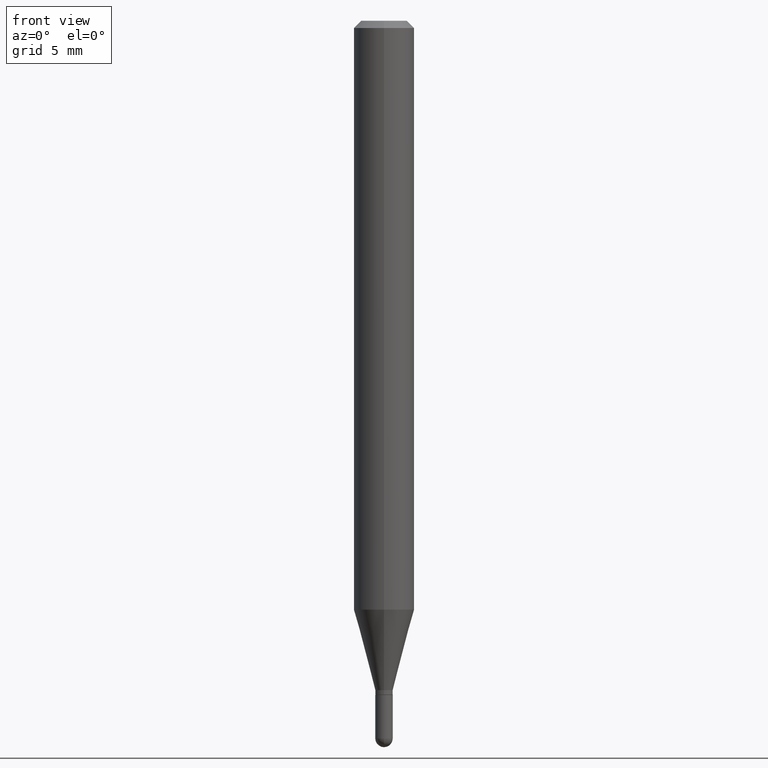
[diagram: clean part render]
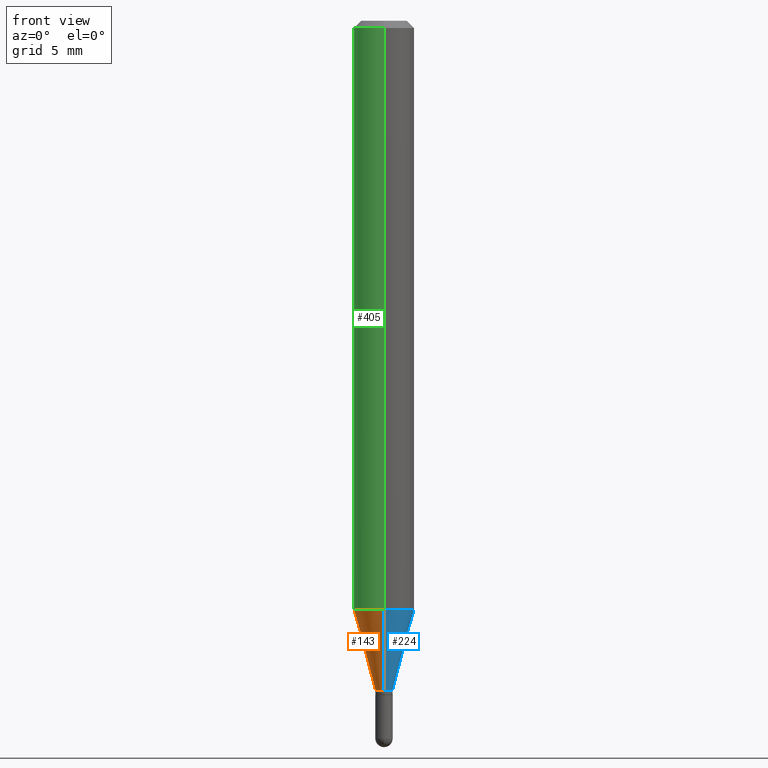
[diagram: same view with three faces highlighted in distinct colors, each labeled with its STEP entity id]
A machine part, front view with three faces highlighted in distinct colors.
Their STEP definitions:

[orange] entity #143 — the highlighted conical surface has half-angle 15 deg.
#8 = LINE ( 'NONE', #375, #111 ) ;
#39 = VERTEX_POINT ( 'NONE', #145 ) ;
#41 = ORIENTED_EDGE ( 'NONE', *, *, #107, .F. ) ;
#42 = AXIS2_PLACEMENT_3D ( 'NONE', #341, #338, #431 ) ;
#66 = DIRECTION ( 'NONE',  ( -6.982962677686265133E-15, -1.000000000000000000, 0.000000000000000000 ) ) ;
#79 = AXIS2_PLACEMENT_3D ( 'NONE', #98, #94, #254 ) ;
#89 = ORIENTED_EDGE ( 'NONE', *, *, #463, .T. ) ;
#94 = DIRECTION ( 'NONE',  ( -2.445459386778568343E-29, 3.491494827969470629E-15, 1.000000000000000000 ) ) ;
#98 = CARTESIAN_POINT ( 'NONE',  ( 3.379624872527981378E-29, -4.825245852253809549E-15, -1.382000000000000117 ) ) ;
#107 = EDGE_CURVE ( 'NONE', #490, #39, #264, .T. ) ;
#111 = VECTOR ( 'NONE', #258, 39.37007874015748143 ) ;
#136 = CARTESIAN_POINT ( 'NONE',  ( 2.859934511434718867E-16, 0.01799999999999509631, -1.382000000000000117 ) ) ;
#143 = ADVANCED_FACE ( 'NONE', ( #471 ), #161, .T. ) ;
#145 = CARTESIAN_POINT ( 'NONE',  ( 4.440892098500920998E-16, 0.06249999999999573952, -1.215923739063185627 ) ) ;
#161 = CONICAL_SURFACE ( 'NONE', #432, 0.01799999999999992231, 0.2617993877991502960 ) ;
#181 = EDGE_CURVE ( 'NONE', #39, #291, #219, .T. ) ;
#190 = CARTESIAN_POINT ( 'NONE',  ( 1.278976924368512546E-16, 0.01799999999999509631, -1.382000000000000117 ) ) ;
#219 = CIRCLE ( 'NONE', #42, 0.06250000000000000000 ) ;
#242 = ORIENTED_EDGE ( 'NONE', *, *, #430, .T. ) ;
#254 = DIRECTION ( 'NONE',  ( -6.982962677686265133E-15, -1.000000000000000000, 0.000000000000000000 ) ) ;
#258 = DIRECTION ( 'NONE',  ( -1.807323732225330139E-15, -0.2588190451025181860, 0.9659258262890689783 ) ) ;
#264 = LINE ( 'NONE', #190, #351 ) ;
#271 = CARTESIAN_POINT ( 'NONE',  ( 3.379624872527981378E-29, -4.825245852253809549E-15, -1.382000000000000117 ) ) ;
#291 = VERTEX_POINT ( 'NONE', #443 ) ;
#300 = VERTEX_POINT ( 'NONE', #437 ) ;
#307 = CIRCLE ( 'NONE', #79, 0.01799999999999992231 ) ;
#338 = DIRECTION ( 'NONE',  ( -2.445459386778568343E-29, 3.491494827969470629E-15, 1.000000000000000000 ) ) ;
#341 = CARTESIAN_POINT ( 'NONE',  ( 2.973492121298961369E-29, -4.245391446144412231E-15, -1.215923739063185405 ) ) ;
#343 = DIRECTION ( 'NONE',  ( -2.445459386778568343E-29, 3.491494827969470629E-15, 1.000000000000000000 ) ) ;
#351 = VECTOR ( 'NONE', #435, 39.37007874015748143 ) ;
#375 = CARTESIAN_POINT ( 'NONE',  ( -1.256933281983184281E-16, -0.01800000000000474831, -1.382000000000000117 ) ) ;
#376 = EDGE_LOOP ( 'NONE', ( #41, #242, #89, #486 ) ) ;
#430 = EDGE_CURVE ( 'NONE', #490, #300, #307, .T. ) ;
#431 = DIRECTION ( 'NONE',  ( -6.982962677686265922E-15, -1.000000000000000000, 4.370956789862821150E-15 ) ) ;
#432 = AXIS2_PLACEMENT_3D ( 'NONE', #271, #343, #66 ) ;
#435 = DIRECTION ( 'NONE',  ( 1.839019923739600315E-15, 0.2588190451025249583, 0.9659258262890670910 ) ) ;
#437 = CARTESIAN_POINT ( 'NONE',  ( -1.256933281983184281E-16, -0.01800000000000474831, -1.382000000000000117 ) ) ;
#443 = CARTESIAN_POINT ( 'NONE',  ( -4.364351673553620378E-16, -0.06250000000000426048, -1.215923739063185183 ) ) ;
#463 = EDGE_CURVE ( 'NONE', #300, #291, #8, .T. ) ;
#471 = FACE_OUTER_BOUND ( 'NONE', #376, .T. ) ;
#486 = ORIENTED_EDGE ( 'NONE', *, *, #181, .F. ) ;
#490 = VERTEX_POINT ( 'NONE', #136 ) ;

[blue] entity #224 — the highlighted conical surface has half-angle 15 deg.
#8 = LINE ( 'NONE', #375, #111 ) ;
#28 = DIRECTION ( 'NONE',  ( -6.982962677686265922E-15, -1.000000000000000000, 4.370956789862821150E-15 ) ) ;
#39 = VERTEX_POINT ( 'NONE', #145 ) ;
#43 = DIRECTION ( 'NONE',  ( -6.982962677686265133E-15, -1.000000000000000000, 0.000000000000000000 ) ) ;
#64 = EDGE_CURVE ( 'NONE', #291, #39, #439, .T. ) ;
#71 = CONICAL_SURFACE ( 'NONE', #157, 0.01799999999999992231, 0.2617993877991502960 ) ;
#91 = ORIENTED_EDGE ( 'NONE', *, *, #64, .F. ) ;
#107 = EDGE_CURVE ( 'NONE', #490, #39, #264, .T. ) ;
#111 = VECTOR ( 'NONE', #258, 39.37007874015748143 ) ;
#136 = CARTESIAN_POINT ( 'NONE',  ( 2.859934511434718867E-16, 0.01799999999999509631, -1.382000000000000117 ) ) ;
#145 = CARTESIAN_POINT ( 'NONE',  ( 4.440892098500920998E-16, 0.06249999999999573952, -1.215923739063185627 ) ) ;
#155 = CARTESIAN_POINT ( 'NONE',  ( 2.973492121298961369E-29, -4.245391446144412231E-15, -1.215923739063185405 ) ) ;
#157 = AXIS2_PLACEMENT_3D ( 'NONE', #482, #273, #474 ) ;
#190 = CARTESIAN_POINT ( 'NONE',  ( 1.278976924368512546E-16, 0.01799999999999509631, -1.382000000000000117 ) ) ;
#202 = ORIENTED_EDGE ( 'NONE', *, *, #463, .F. ) ;
#224 = ADVANCED_FACE ( 'NONE', ( #279 ), #71, .T. ) ;
#258 = DIRECTION ( 'NONE',  ( -1.807323732225330139E-15, -0.2588190451025181860, 0.9659258262890689783 ) ) ;
#264 = LINE ( 'NONE', #190, #351 ) ;
#273 = DIRECTION ( 'NONE',  ( -2.445459386778568343E-29, 3.491494827969470629E-15, 1.000000000000000000 ) ) ;
#279 = FACE_OUTER_BOUND ( 'NONE', #327, .T. ) ;
#283 = CARTESIAN_POINT ( 'NONE',  ( 3.379624872527981378E-29, -4.825245852253809549E-15, -1.382000000000000117 ) ) ;
#287 = EDGE_CURVE ( 'NONE', #300, #490, #410, .T. ) ;
#289 = AXIS2_PLACEMENT_3D ( 'NONE', #283, #353, #43 ) ;
#291 = VERTEX_POINT ( 'NONE', #443 ) ;
#300 = VERTEX_POINT ( 'NONE', #437 ) ;
#306 = DIRECTION ( 'NONE',  ( -2.445459386778568343E-29, 3.491494827969470629E-15, 1.000000000000000000 ) ) ;
#327 = EDGE_LOOP ( 'NONE', ( #400, #361, #91, #202 ) ) ;
#351 = VECTOR ( 'NONE', #435, 39.37007874015748143 ) ;
#353 = DIRECTION ( 'NONE',  ( -2.445459386778568343E-29, 3.491494827969470629E-15, 1.000000000000000000 ) ) ;
#361 = ORIENTED_EDGE ( 'NONE', *, *, #107, .T. ) ;
#375 = CARTESIAN_POINT ( 'NONE',  ( -1.256933281983184281E-16, -0.01800000000000474831, -1.382000000000000117 ) ) ;
#387 = AXIS2_PLACEMENT_3D ( 'NONE', #155, #306, #28 ) ;
#400 = ORIENTED_EDGE ( 'NONE', *, *, #287, .T. ) ;
#410 = CIRCLE ( 'NONE', #289, 0.01799999999999992231 ) ;
#435 = DIRECTION ( 'NONE',  ( 1.839019923739600315E-15, 0.2588190451025249583, 0.9659258262890670910 ) ) ;
#437 = CARTESIAN_POINT ( 'NONE',  ( -1.256933281983184281E-16, -0.01800000000000474831, -1.382000000000000117 ) ) ;
#439 = CIRCLE ( 'NONE', #387, 0.06250000000000000000 ) ;
#443 = CARTESIAN_POINT ( 'NONE',  ( -4.364351673553620378E-16, -0.06250000000000426048, -1.215923739063185183 ) ) ;
#463 = EDGE_CURVE ( 'NONE', #300, #291, #8, .T. ) ;
#474 = DIRECTION ( 'NONE',  ( -6.982962677686265133E-15, -1.000000000000000000, 0.000000000000000000 ) ) ;
#482 = CARTESIAN_POINT ( 'NONE',  ( 3.379624872527981378E-29, -4.825245852253809549E-15, -1.382000000000000117 ) ) ;
#490 = VERTEX_POINT ( 'NONE', #136 ) ;

[green] entity #405 — the highlighted cylindrical surface (edge-blend (fillet) strip) has radius 1.5875 mm, axis along (-0, 0, 1).
#3 = EDGE_CURVE ( 'NONE', #39, #217, #180, .T. ) ;
#38 = AXIS2_PLACEMENT_3D ( 'NONE', #179, #211, #334 ) ;
#39 = VERTEX_POINT ( 'NONE', #145 ) ;
#42 = AXIS2_PLACEMENT_3D ( 'NONE', #341, #338, #431 ) ;
#99 = CARTESIAN_POINT ( 'NONE',  ( 4.440892098500625669E-16, 0.06250000000000000000, -2.182184267480919143E-16 ) ) ;
#145 = CARTESIAN_POINT ( 'NONE',  ( 4.440892098500920998E-16, 0.06249999999999573952, -1.215923739063185627 ) ) ;
#167 = DIRECTION ( 'NONE',  ( -2.445459386778568343E-29, 3.491494827969470629E-15, 1.000000000000000000 ) ) ;
#179 = CARTESIAN_POINT ( 'NONE',  ( 3.668189080167854844E-31, -5.237242241954208804E-17, -0.01500000000000000812 ) ) ;
#180 = LINE ( 'NONE', #99, #250 ) ;
#181 = EDGE_CURVE ( 'NONE', #39, #291, #219, .T. ) ;
#182 = VECTOR ( 'NONE', #167, 39.37007874015748143 ) ;
#208 = ORIENTED_EDGE ( 'NONE', *, *, #3, .F. ) ;
#211 = DIRECTION ( 'NONE',  ( -2.445459386778568343E-29, 3.491494827969470629E-15, 1.000000000000000000 ) ) ;
#217 = VERTEX_POINT ( 'NONE', #285 ) ;
#219 = CIRCLE ( 'NONE', #42, 0.06250000000000000000 ) ;
#250 = VECTOR ( 'NONE', #262, 39.37007874015748143 ) ;
#262 = DIRECTION ( 'NONE',  ( -2.445459386778568343E-29, 3.491494827969470629E-15, 1.000000000000000000 ) ) ;
#285 = CARTESIAN_POINT ( 'NONE',  ( 4.440892098500924943E-16, 0.06249999999999993755, -0.01500000000000022669 ) ) ;
#291 = VERTEX_POINT ( 'NONE', #443 ) ;
#292 = CARTESIAN_POINT ( 'NONE',  ( -4.364351673553912750E-16, -0.06250000000000005551, -0.01499999999999979128 ) ) ;
#299 = AXIS2_PLACEMENT_3D ( 'NONE', #371, #326, #408 ) ;
#326 = DIRECTION ( 'NONE',  ( -2.445459386778568343E-29, 3.491494827969470629E-15, 1.000000000000000000 ) ) ;
#328 = CARTESIAN_POINT ( 'NONE',  ( -4.364351673553916201E-16, -0.06250000000000000000, 2.182184267480919143E-16 ) ) ;
#334 = DIRECTION ( 'NONE',  ( -6.982962677686265922E-15, -1.000000000000000000, 3.483106191921935554E-15 ) ) ;
#338 = DIRECTION ( 'NONE',  ( -2.445459386778568343E-29, 3.491494827969470629E-15, 1.000000000000000000 ) ) ;
#341 = CARTESIAN_POINT ( 'NONE',  ( 2.973492121298961369E-29, -4.245391446144412231E-15, -1.215923739063185405 ) ) ;
#368 = LINE ( 'NONE', #328, #182 ) ;
#371 = CARTESIAN_POINT ( 'NONE',  ( 0.000000000000000000, 0.000000000000000000, 0.000000000000000000 ) ) ;
#372 = ORIENTED_EDGE ( 'NONE', *, *, #181, .T. ) ;
#389 = EDGE_CURVE ( 'NONE', #217, #494, #436, .T. ) ;
#405 = ADVANCED_FACE ( 'NONE', ( #456 ), #493, .T. ) ;
#408 = DIRECTION ( 'NONE',  ( -6.982962677686265922E-15, -1.000000000000000000, 3.491494827969470629E-15 ) ) ;
#423 = ORIENTED_EDGE ( 'NONE', *, *, #473, .T. ) ;
#431 = DIRECTION ( 'NONE',  ( -6.982962677686265922E-15, -1.000000000000000000, 4.370956789862821150E-15 ) ) ;
#436 = CIRCLE ( 'NONE', #38, 0.06250000000000000000 ) ;
#443 = CARTESIAN_POINT ( 'NONE',  ( -4.364351673553620378E-16, -0.06250000000000426048, -1.215923739063185183 ) ) ;
#449 = EDGE_LOOP ( 'NONE', ( #208, #372, #423, #484 ) ) ;
#456 = FACE_OUTER_BOUND ( 'NONE', #449, .T. ) ;
#473 = EDGE_CURVE ( 'NONE', #291, #494, #368, .T. ) ;
#484 = ORIENTED_EDGE ( 'NONE', *, *, #389, .F. ) ;
#493 = CYLINDRICAL_SURFACE ( 'NONE', #299, 0.06250000000000000000 ) ;
#494 = VERTEX_POINT ( 'NONE', #292 ) ;